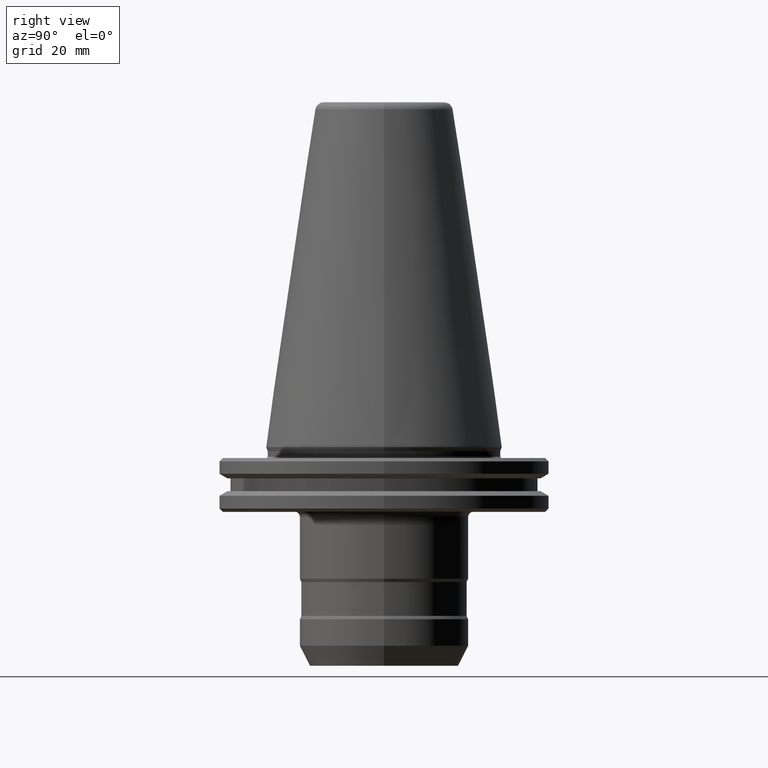
[diagram: clean part render]
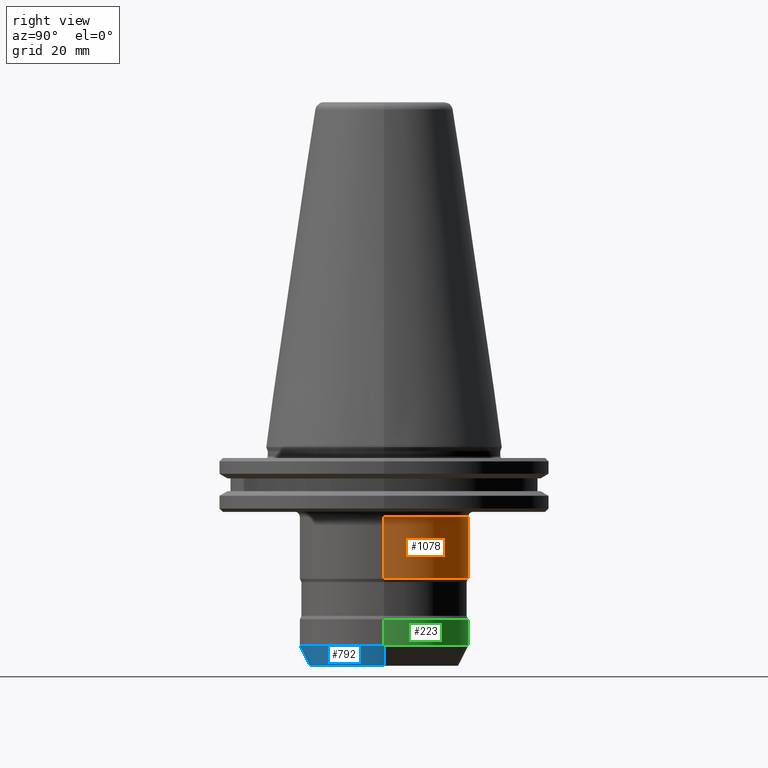
[diagram: same view with three faces highlighted in distinct colors, each labeled with its STEP entity id]
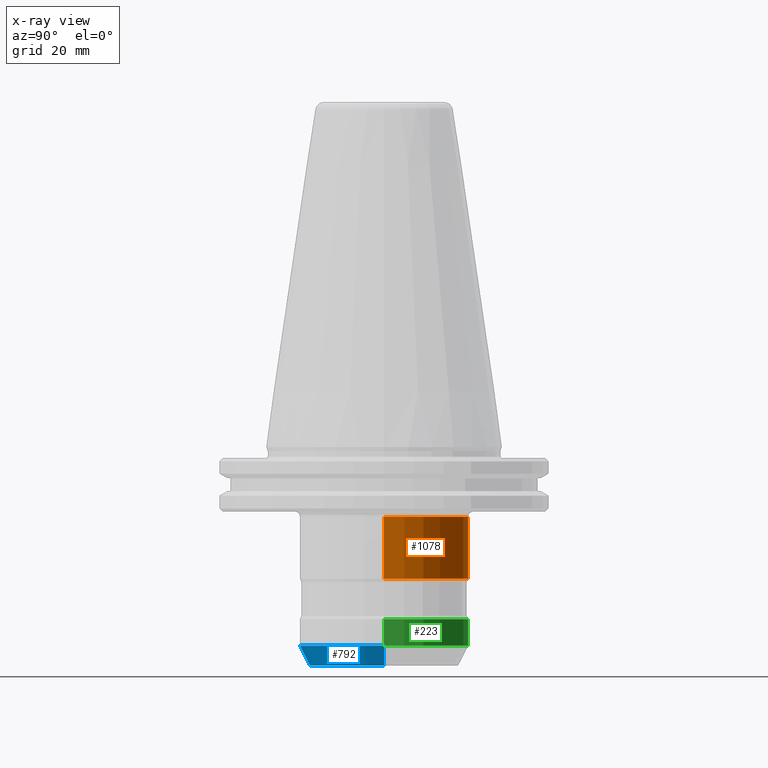
[diagram: x-ray of the same camera — body ghosted, the three highlighted faces saturated]
A machine part, right view with three faces highlighted in distinct colors.
The next image is the same camera in x-ray (body ghosted, the three faces saturated) — at least one of them is partly hidden behind the body in this view.
Their STEP definitions:

[orange] entity #1078 — the highlighted cylindrical surface (partial cylindrical patch) has radius 25 mm, axis along (-0, -0, 1).
#19 = CARTESIAN_POINT ( 'NONE',  ( 0.0000000000000000000, 0.0000000000000000000, -20.60000000000017200 ) ) ;
#26 = DIRECTION ( 'NONE',  ( -0.0000000000000000000, -0.0000000000000000000, 1.000000000000000000 ) ) ;
#60 = DIRECTION ( 'NONE',  ( -0.0000000000000000000, -0.0000000000000000000, 1.000000000000000000 ) ) ;
#62 = DIRECTION ( 'NONE',  ( -0.0000000000000000000, -0.0000000000000000000, 1.000000000000000000 ) ) ;
#93 = ORIENTED_EDGE ( 'NONE', *, *, #311, .F. ) ;
#202 = CARTESIAN_POINT ( 'NONE',  ( -25.00000000000000000, 3.061616997868383000E-015, -20.60000000000017200 ) ) ;
#207 = CARTESIAN_POINT ( 'NONE',  ( -25.00000000000000000, 3.061616997868383000E-015, -38.83325419939076500 ) ) ;
#245 = CARTESIAN_POINT ( 'NONE',  ( 25.00000000000000000, 0.0000000000000000000, -20.60000000000017200 ) ) ;
#279 = CARTESIAN_POINT ( 'NONE',  ( 0.0000000000000000000, 0.0000000000000000000, -38.83325419939076500 ) ) ;
#309 = AXIS2_PLACEMENT_3D ( 'NONE', #279, #26, #882 ) ;
#311 = EDGE_CURVE ( 'NONE', #1114, #950, #400, .T. ) ;
#315 = VECTOR ( 'NONE', #62, 1000.000000000000000 ) ;
#400 = CIRCLE ( 'NONE', #623, 25.00000000000000000 ) ;
#502 = VERTEX_POINT ( 'NONE', #742 ) ;
#513 = DIRECTION ( 'NONE',  ( 1.000000000000000000, 0.0000000000000000000, 0.0000000000000000000 ) ) ;
#608 = EDGE_CURVE ( 'NONE', #610, #950, #821, .T. ) ;
#610 = VERTEX_POINT ( 'NONE', #207 ) ;
#623 = AXIS2_PLACEMENT_3D ( 'NONE', #19, #60, #898 ) ;
#636 = EDGE_CURVE ( 'NONE', #502, #610, #1246, .T. ) ;
#653 = VECTOR ( 'NONE', #865, 1000.000000000000000 ) ;
#681 = LINE ( 'NONE', #773, #653 ) ;
#710 = AXIS2_PLACEMENT_3D ( 'NONE', #806, #914, #513 ) ;
#742 = CARTESIAN_POINT ( 'NONE',  ( 25.00000000000000000, 0.0000000000000000000, -38.83325419939076500 ) ) ;
#753 = FACE_OUTER_BOUND ( 'NONE', #927, .T. ) ;
#773 = CARTESIAN_POINT ( 'NONE',  ( 25.00000000000000000, 0.0000000000000000000, 125.3933933958389100 ) ) ;
#788 = ORIENTED_EDGE ( 'NONE', *, *, #912, .F. ) ;
#806 = CARTESIAN_POINT ( 'NONE',  ( 0.0000000000000000000, 0.0000000000000000000, 125.3933933958389100 ) ) ;
#821 = LINE ( 'NONE', #1044, #315 ) ;
#865 = DIRECTION ( 'NONE',  ( -0.0000000000000000000, -0.0000000000000000000, 1.000000000000000000 ) ) ;
#882 = DIRECTION ( 'NONE',  ( 1.000000000000000000, 0.0000000000000000000, 0.0000000000000000000 ) ) ;
#896 = ORIENTED_EDGE ( 'NONE', *, *, #608, .T. ) ;
#898 = DIRECTION ( 'NONE',  ( 1.000000000000000000, 0.0000000000000000000, 0.0000000000000000000 ) ) ;
#912 = EDGE_CURVE ( 'NONE', #502, #1114, #681, .T. ) ;
#914 = DIRECTION ( 'NONE',  ( -0.0000000000000000000, -0.0000000000000000000, 1.000000000000000000 ) ) ;
#927 = EDGE_LOOP ( 'NONE', ( #1115, #896, #93, #788 ) ) ;
#950 = VERTEX_POINT ( 'NONE', #202 ) ;
#957 = CYLINDRICAL_SURFACE ( 'NONE', #710, 25.00000000000000000 ) ;
#1044 = CARTESIAN_POINT ( 'NONE',  ( -25.00000000000000000, 3.061616997868383000E-015, 125.3933933958389100 ) ) ;
#1078 = ADVANCED_FACE ( 'NONE', ( #753 ), #957, .T. ) ;
#1114 = VERTEX_POINT ( 'NONE', #245 ) ;
#1115 = ORIENTED_EDGE ( 'NONE', *, *, #636, .T. ) ;
#1246 = CIRCLE ( 'NONE', #309, 25.00000000000000000 ) ;

[blue] entity #792 — the highlighted conical surface has half-angle 26.962 deg.
#46 = CARTESIAN_POINT ( 'NONE',  ( -22.00000000626744900, 2.877919978380050500E-015, -64.50000000000000000 ) ) ;
#49 = VECTOR ( 'NONE', #1224, 1000.000000000000000 ) ;
#63 = AXIS2_PLACEMENT_3D ( 'NONE', #954, #209, #297 ) ;
#152 = DIRECTION ( 'NONE',  ( 0.4534057921369649100, 0.0000000000000000000, 0.8913042060131048900 ) ) ;
#193 = ORIENTED_EDGE ( 'NONE', *, *, #299, .F. ) ;
#209 = DIRECTION ( 'NONE',  ( -0.0000000000000000000, -0.0000000000000000000, 1.000000000000000000 ) ) ;
#216 = VERTEX_POINT ( 'NONE', #46 ) ;
#248 = CIRCLE ( 'NONE', #560, 25.00000000000000000 ) ;
#257 = VERTEX_POINT ( 'NONE', #478 ) ;
#297 = DIRECTION ( 'NONE',  ( 1.000000000000000000, 0.0000000000000000000, 0.0000000000000000000 ) ) ;
#299 = EDGE_CURVE ( 'NONE', #257, #476, #248, .T. ) ;
#310 = DIRECTION ( 'NONE',  ( 1.000000000000000000, 0.0000000000000000000, 0.0000000000000000000 ) ) ;
#334 = CONICAL_SURFACE ( 'NONE', #63, 22.00000000626744900, 0.4705827749823737200 ) ;
#414 = CARTESIAN_POINT ( 'NONE',  ( 25.00000000000000000, 0.0000000000000000000, -58.60260596837419200 ) ) ;
#432 = CARTESIAN_POINT ( 'NONE',  ( 22.00000000626744900, 0.0000000000000000000, -64.50000000000000000 ) ) ;
#476 = VERTEX_POINT ( 'NONE', #414 ) ;
#478 = CARTESIAN_POINT ( 'NONE',  ( -25.00000000000000000, 3.061616997868383000E-015, -58.60260596837419200 ) ) ;
#488 = AXIS2_PLACEMENT_3D ( 'NONE', #949, #778, #1028 ) ;
#507 = VECTOR ( 'NONE', #152, 1000.000000000000000 ) ;
#560 = AXIS2_PLACEMENT_3D ( 'NONE', #969, #1027, #310 ) ;
#605 = CARTESIAN_POINT ( 'NONE',  ( -22.00000000626744900, 2.694222958891718400E-015, -64.50000000000000000 ) ) ;
#619 = VERTEX_POINT ( 'NONE', #432 ) ;
#654 = FACE_OUTER_BOUND ( 'NONE', #1000, .T. ) ;
#657 = ORIENTED_EDGE ( 'NONE', *, *, #856, .T. ) ;
#726 = ORIENTED_EDGE ( 'NONE', *, *, #1002, .F. ) ;
#778 = DIRECTION ( 'NONE',  ( -0.0000000000000000000, -0.0000000000000000000, 1.000000000000000000 ) ) ;
#792 = ADVANCED_FACE ( 'NONE', ( #654 ), #334, .T. ) ;
#811 = LINE ( 'NONE', #605, #49 ) ;
#856 = EDGE_CURVE ( 'NONE', #216, #619, #1018, .T. ) ;
#949 = CARTESIAN_POINT ( 'NONE',  ( 0.0000000000000000000, 0.0000000000000000000, -64.50000000000000000 ) ) ;
#954 = CARTESIAN_POINT ( 'NONE',  ( 0.0000000000000000000, 0.0000000000000000000, -64.50000000000000000 ) ) ;
#969 = CARTESIAN_POINT ( 'NONE',  ( 0.0000000000000000000, 0.0000000000000000000, -58.60260596837419200 ) ) ;
#1000 = EDGE_LOOP ( 'NONE', ( #726, #657, #1217, #193 ) ) ;
#1002 = EDGE_CURVE ( 'NONE', #216, #257, #811, .T. ) ;
#1006 = CARTESIAN_POINT ( 'NONE',  ( 22.00000000626744900, 0.0000000000000000000, -64.50000000000000000 ) ) ;
#1018 = CIRCLE ( 'NONE', #488, 22.00000000626744900 ) ;
#1027 = DIRECTION ( 'NONE',  ( -0.0000000000000000000, -0.0000000000000000000, 1.000000000000000000 ) ) ;
#1028 = DIRECTION ( 'NONE',  ( 1.000000000000000000, 0.0000000000000000000, 0.0000000000000000000 ) ) ;
#1070 = EDGE_CURVE ( 'NONE', #619, #476, #1230, .T. ) ;
#1217 = ORIENTED_EDGE ( 'NONE', *, *, #1070, .T. ) ;
#1224 = DIRECTION ( 'NONE',  ( -0.4534057921369649100, 5.552619520554042700E-017, 0.8913042060131048900 ) ) ;
#1230 = LINE ( 'NONE', #1006, #507 ) ;

[green] entity #223 — the highlighted cylindrical surface (partial cylindrical patch) has radius 25 mm, axis along (-0, -0, 1).
#16 = DIRECTION ( 'NONE',  ( -0.0000000000000000000, -0.0000000000000000000, 1.000000000000000000 ) ) ;
#42 = DIRECTION ( 'NONE',  ( -0.0000000000000000000, -0.0000000000000000000, 1.000000000000000000 ) ) ;
#50 = DIRECTION ( 'NONE',  ( -0.0000000000000000000, -0.0000000000000000000, 1.000000000000000000 ) ) ;
#51 = EDGE_LOOP ( 'NONE', ( #1175, #79, #147, #1202 ) ) ;
#79 = ORIENTED_EDGE ( 'NONE', *, *, #427, .T. ) ;
#147 = ORIENTED_EDGE ( 'NONE', *, *, #1015, .F. ) ;
#149 = EDGE_CURVE ( 'NONE', #476, #585, #1005, .T. ) ;
#156 = DIRECTION ( 'NONE',  ( 1.000000000000000000, 0.0000000000000000000, 0.0000000000000000000 ) ) ;
#190 = FACE_OUTER_BOUND ( 'NONE', #51, .T. ) ;
#211 = CARTESIAN_POINT ( 'NONE',  ( 0.0000000000000000000, 0.0000000000000000000, 125.3933933958389100 ) ) ;
#212 = DIRECTION ( 'NONE',  ( 1.000000000000000000, 0.0000000000000000000, 0.0000000000000000000 ) ) ;
#223 = ADVANCED_FACE ( 'NONE', ( #190 ), #683, .T. ) ;
#244 = AXIS2_PLACEMENT_3D ( 'NONE', #296, #953, #212 ) ;
#257 = VERTEX_POINT ( 'NONE', #478 ) ;
#296 = CARTESIAN_POINT ( 'NONE',  ( 0.0000000000000000000, 0.0000000000000000000, -50.76674580059692200 ) ) ;
#298 = LINE ( 'NONE', #326, #1234 ) ;
#326 = CARTESIAN_POINT ( 'NONE',  ( -25.00000000000000000, 3.061616997868383000E-015, 125.3933933958389100 ) ) ;
#329 = EDGE_CURVE ( 'NONE', #476, #257, #866, .T. ) ;
#361 = AXIS2_PLACEMENT_3D ( 'NONE', #211, #42, #156 ) ;
#414 = CARTESIAN_POINT ( 'NONE',  ( 25.00000000000000000, 0.0000000000000000000, -58.60260596837419200 ) ) ;
#427 = EDGE_CURVE ( 'NONE', #257, #952, #298, .T. ) ;
#444 = DIRECTION ( 'NONE',  ( -0.0000000000000000000, -0.0000000000000000000, 1.000000000000000000 ) ) ;
#446 = CARTESIAN_POINT ( 'NONE',  ( 0.0000000000000000000, 0.0000000000000000000, -58.60260596837419200 ) ) ;
#476 = VERTEX_POINT ( 'NONE', #414 ) ;
#478 = CARTESIAN_POINT ( 'NONE',  ( -25.00000000000000000, 3.061616997868383000E-015, -58.60260596837419200 ) ) ;
#526 = VECTOR ( 'NONE', #16, 1000.000000000000000 ) ;
#585 = VERTEX_POINT ( 'NONE', #1122 ) ;
#645 = DIRECTION ( 'NONE',  ( 1.000000000000000000, 0.0000000000000000000, 0.0000000000000000000 ) ) ;
#680 = CARTESIAN_POINT ( 'NONE',  ( 25.00000000000000000, 0.0000000000000000000, 125.3933933958389100 ) ) ;
#683 = CYLINDRICAL_SURFACE ( 'NONE', #361, 25.00000000000000000 ) ;
#866 = CIRCLE ( 'NONE', #867, 25.00000000000000000 ) ;
#867 = AXIS2_PLACEMENT_3D ( 'NONE', #446, #444, #645 ) ;
#952 = VERTEX_POINT ( 'NONE', #1242 ) ;
#953 = DIRECTION ( 'NONE',  ( -0.0000000000000000000, -0.0000000000000000000, 1.000000000000000000 ) ) ;
#1005 = LINE ( 'NONE', #680, #526 ) ;
#1015 = EDGE_CURVE ( 'NONE', #585, #952, #1047, .T. ) ;
#1047 = CIRCLE ( 'NONE', #244, 25.00000000000000000 ) ;
#1122 = CARTESIAN_POINT ( 'NONE',  ( 25.00000000000000000, 0.0000000000000000000, -50.76674580059692200 ) ) ;
#1175 = ORIENTED_EDGE ( 'NONE', *, *, #329, .T. ) ;
#1202 = ORIENTED_EDGE ( 'NONE', *, *, #149, .F. ) ;
#1234 = VECTOR ( 'NONE', #50, 1000.000000000000000 ) ;
#1242 = CARTESIAN_POINT ( 'NONE',  ( -25.00000000000000000, 3.061616997868383000E-015, -50.76674580059692200 ) ) ;